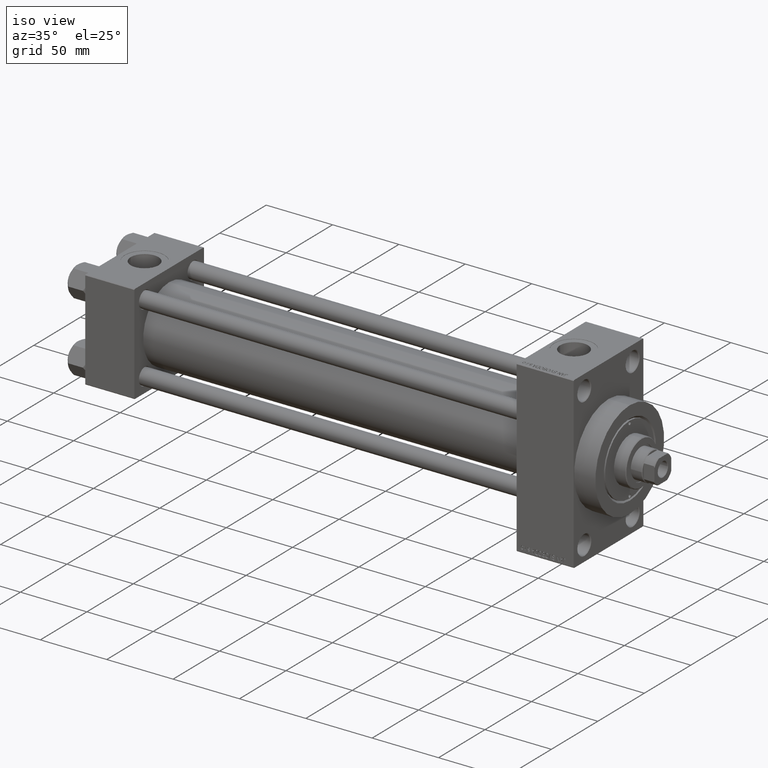
[diagram: clean part render]
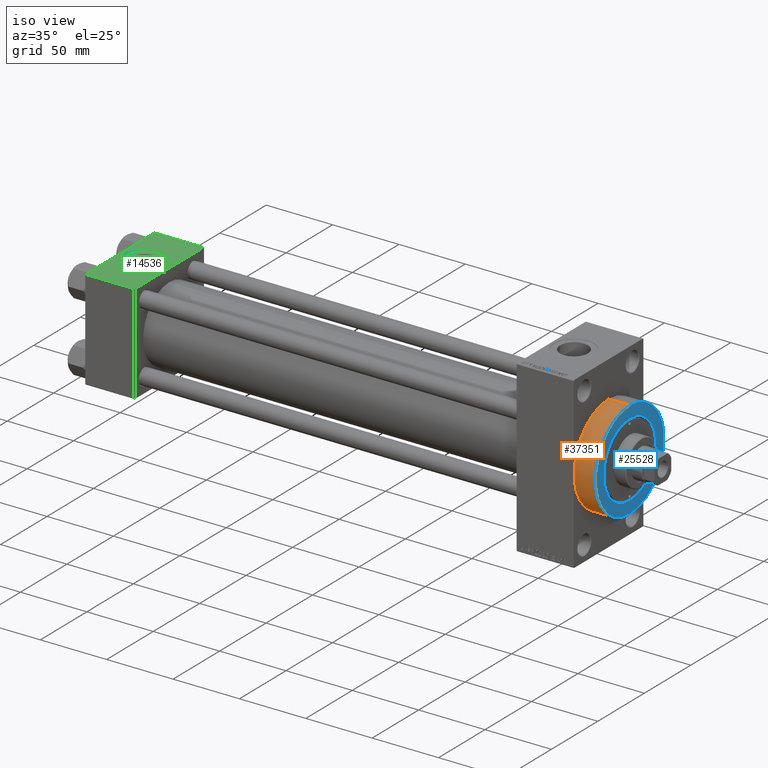
[diagram: same view with three faces highlighted in distinct colors, each labeled with its STEP entity id]
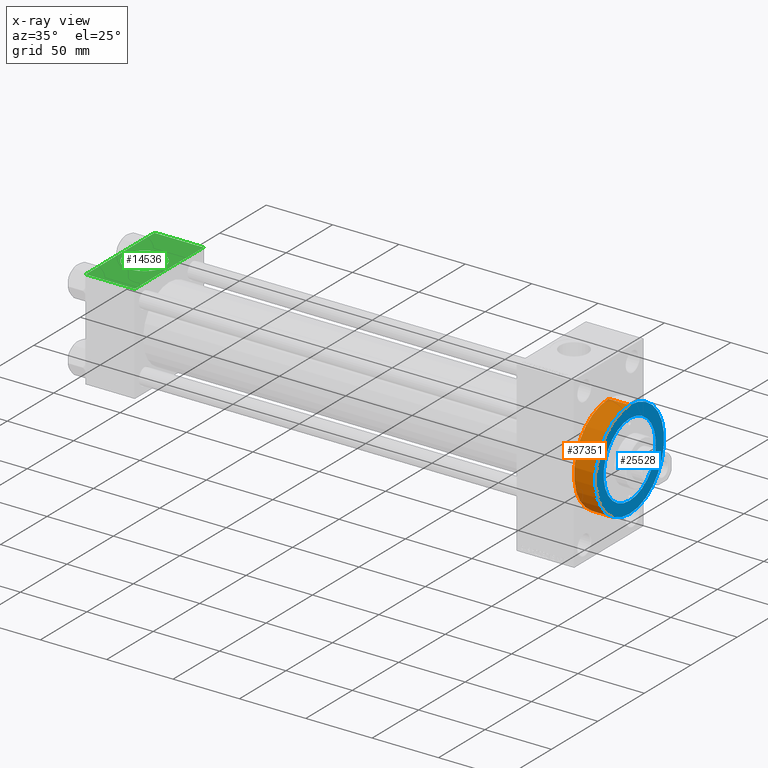
[diagram: x-ray of the same camera — body ghosted, the three highlighted faces saturated]
A machine part, iso view with three faces highlighted in distinct colors.
The next image is the same camera in x-ray (body ghosted, the three faces saturated) — at least one of them is partly hidden behind the body in this view.
Their STEP definitions:

[orange] entity #37351 — the highlighted cylindrical surface (partial cylindrical patch) has radius 37 mm, axis along (-1, -0, -0).
#944 = CIRCLE ( 'NONE', #16902, 37.00000000000000000 ) ;
#1971 = CARTESIAN_POINT ( 'NONE',  ( 367.9999999999999432, 4.531193156845206793E-15, -37.00000000000000000 ) ) ;
#5711 = ORIENTED_EDGE ( 'NONE', *, *, #42614, .F. ) ;
#8736 = DIRECTION ( 'NONE',  ( 1.000000000000000000, 0.000000000000000000, 0.000000000000000000 ) ) ;
#10818 = DIRECTION ( 'NONE',  ( -1.000000000000000000, -0.000000000000000000, -0.000000000000000000 ) ) ;
#12313 = EDGE_CURVE ( 'NONE', #16116, #41378, #48878, .T. ) ;
#13114 = ORIENTED_EDGE ( 'NONE', *, *, #43812, .T. ) ;
#13224 = CARTESIAN_POINT ( 'NONE',  ( 367.9999999999999432, 0.000000000000000000, 0.000000000000000000 ) ) ;
#13667 = VERTEX_POINT ( 'NONE', #36776 ) ;
#13693 = CYLINDRICAL_SURFACE ( 'NONE', #32863, 37.00000000000000000 ) ;
#14745 = ORIENTED_EDGE ( 'NONE', *, *, #43523, .T. ) ;
#16116 = VERTEX_POINT ( 'NONE', #34728 ) ;
#16902 = AXIS2_PLACEMENT_3D ( 'NONE', #28013, #40757, #29009 ) ;
#17477 = DIRECTION ( 'NONE',  ( 0.000000000000000000, 0.000000000000000000, -1.000000000000000000 ) ) ;
#17754 = CIRCLE ( 'NONE', #24159, 37.00000000000000000 ) ;
#21686 = CARTESIAN_POINT ( 'NONE',  ( 383.9999999999999432, 0.000000000000000000, 37.00000000000000000 ) ) ;
#23969 = CARTESIAN_POINT ( 'NONE',  ( 383.9999999999999432, 0.000000000000000000, 0.000000000000000000 ) ) ;
#24159 = AXIS2_PLACEMENT_3D ( 'NONE', #13224, #8736, #17477 ) ;
#24462 = DIRECTION ( 'NONE',  ( 0.000000000000000000, 0.000000000000000000, 1.000000000000000000 ) ) ;
#28013 = CARTESIAN_POINT ( 'NONE',  ( 383.9999999999999432, 0.000000000000000000, 0.000000000000000000 ) ) ;
#28023 = EDGE_LOOP ( 'NONE', ( #36216, #5711, #13114, #14745 ) ) ;
#29009 = DIRECTION ( 'NONE',  ( 0.000000000000000000, 0.000000000000000000, -1.000000000000000000 ) ) ;
#31742 = LINE ( 'NONE', #31981, #44941 ) ;
#31981 = CARTESIAN_POINT ( 'NONE',  ( 383.9999999999999432, 0.000000000000000000, 37.00000000000000000 ) ) ;
#32007 = DIRECTION ( 'NONE',  ( -1.000000000000000000, -0.000000000000000000, -0.000000000000000000 ) ) ;
#32422 = VERTEX_POINT ( 'NONE', #21686 ) ;
#32863 = AXIS2_PLACEMENT_3D ( 'NONE', #23969, #32007, #24462 ) ;
#34728 = CARTESIAN_POINT ( 'NONE',  ( 383.9999999999999432, 4.531193156845206793E-15, -37.00000000000000000 ) ) ;
#36216 = ORIENTED_EDGE ( 'NONE', *, *, #12313, .F. ) ;
#36244 = VECTOR ( 'NONE', #10818, 1000.000000000000000 ) ;
#36776 = CARTESIAN_POINT ( 'NONE',  ( 367.9999999999999432, 0.000000000000000000, 37.00000000000000000 ) ) ;
#37351 = ADVANCED_FACE ( 'NONE', ( #47272 ), #13693, .T. ) ;
#40757 = DIRECTION ( 'NONE',  ( 1.000000000000000000, 0.000000000000000000, 0.000000000000000000 ) ) ;
#41124 = CARTESIAN_POINT ( 'NONE',  ( 383.9999999999999432, 4.531193156845206793E-15, -37.00000000000000000 ) ) ;
#41378 = VERTEX_POINT ( 'NONE', #1971 ) ;
#42614 = EDGE_CURVE ( 'NONE', #32422, #16116, #944, .T. ) ;
#43523 = EDGE_CURVE ( 'NONE', #13667, #41378, #17754, .T. ) ;
#43812 = EDGE_CURVE ( 'NONE', #32422, #13667, #31742, .T. ) ;
#44941 = VECTOR ( 'NONE', #47740, 1000.000000000000000 ) ;
#47272 = FACE_OUTER_BOUND ( 'NONE', #28023, .T. ) ;
#47740 = DIRECTION ( 'NONE',  ( -1.000000000000000000, -0.000000000000000000, -0.000000000000000000 ) ) ;
#48878 = LINE ( 'NONE', #41124, #36244 ) ;

[blue] entity #25528 — the highlighted planar face has unit normal (1, 0, 0).
#300 = FACE_OUTER_BOUND ( 'NONE', #44791, .T. ) ;
#944 = CIRCLE ( 'NONE', #16902, 37.00000000000000000 ) ;
#1363 = DIRECTION ( 'NONE',  ( -1.000000000000000000, -0.000000000000000000, -0.000000000000000000 ) ) ;
#2549 = CARTESIAN_POINT ( 'NONE',  ( 383.9999999999999432, 3.429011037612599137E-15, 28.00000000000008171 ) ) ;
#3260 = AXIS2_PLACEMENT_3D ( 'NONE', #12108, #1363, #39663 ) ;
#4333 = EDGE_CURVE ( 'NONE', #35128, #19757, #48015, .T. ) ;
#5959 = DIRECTION ( 'NONE',  ( 1.000000000000000000, 0.000000000000000000, 0.000000000000000000 ) ) ;
#12108 = CARTESIAN_POINT ( 'NONE',  ( 383.9999999999999432, 0.000000000000000000, 0.000000000000000000 ) ) ;
#12594 = EDGE_LOOP ( 'NONE', ( #12916, #32836 ) ) ;
#12685 = AXIS2_PLACEMENT_3D ( 'NONE', #19033, #45852, #22293 ) ;
#12916 = ORIENTED_EDGE ( 'NONE', *, *, #4333, .T. ) ;
#13024 = DIRECTION ( 'NONE',  ( 0.000000000000000000, 0.000000000000000000, -1.000000000000000000 ) ) ;
#13706 = DIRECTION ( 'NONE',  ( 0.000000000000000000, 0.000000000000000000, -1.000000000000000000 ) ) ;
#15057 = ORIENTED_EDGE ( 'NONE', *, *, #25784, .T. ) ;
#16116 = VERTEX_POINT ( 'NONE', #34728 ) ;
#16780 = PLANE ( 'NONE',  #46928 ) ;
#16902 = AXIS2_PLACEMENT_3D ( 'NONE', #28013, #40757, #29009 ) ;
#17522 = DIRECTION ( 'NONE',  ( 1.000000000000000000, 0.000000000000000000, 0.000000000000000000 ) ) ;
#19033 = CARTESIAN_POINT ( 'NONE',  ( 383.9999999999999432, 0.000000000000000000, 0.000000000000000000 ) ) ;
#19757 = VERTEX_POINT ( 'NONE', #2549 ) ;
#21686 = CARTESIAN_POINT ( 'NONE',  ( 383.9999999999999432, 0.000000000000000000, 37.00000000000000000 ) ) ;
#22293 = DIRECTION ( 'NONE',  ( 0.000000000000000000, 0.000000000000000000, -1.000000000000000000 ) ) ;
#22843 = AXIS2_PLACEMENT_3D ( 'NONE', #40274, #5959, #13706 ) ;
#25043 = CARTESIAN_POINT ( 'NONE',  ( 383.9999999999999432, 0.000000000000000000, 0.000000000000000000 ) ) ;
#25358 = CIRCLE ( 'NONE', #22843, 37.00000000000000000 ) ;
#25528 = ADVANCED_FACE ( 'NONE', ( #39593, #300 ), #16780, .T. ) ;
#25784 = EDGE_CURVE ( 'NONE', #16116, #32422, #25358, .T. ) ;
#28013 = CARTESIAN_POINT ( 'NONE',  ( 383.9999999999999432, 0.000000000000000000, 0.000000000000000000 ) ) ;
#29009 = DIRECTION ( 'NONE',  ( 0.000000000000000000, 0.000000000000000000, -1.000000000000000000 ) ) ;
#30321 = CIRCLE ( 'NONE', #12685, 28.00000000000008171 ) ;
#32422 = VERTEX_POINT ( 'NONE', #21686 ) ;
#32836 = ORIENTED_EDGE ( 'NONE', *, *, #33376, .T. ) ;
#33376 = EDGE_CURVE ( 'NONE', #19757, #35128, #30321, .T. ) ;
#34728 = CARTESIAN_POINT ( 'NONE',  ( 383.9999999999999432, 4.531193156845206793E-15, -37.00000000000000000 ) ) ;
#35128 = VERTEX_POINT ( 'NONE', #43650 ) ;
#39593 = FACE_BOUND ( 'NONE', #12594, .T. ) ;
#39663 = DIRECTION ( 'NONE',  ( 0.000000000000000000, 0.000000000000000000, -1.000000000000000000 ) ) ;
#40274 = CARTESIAN_POINT ( 'NONE',  ( 383.9999999999999432, 0.000000000000000000, 0.000000000000000000 ) ) ;
#40298 = ORIENTED_EDGE ( 'NONE', *, *, #42614, .T. ) ;
#40757 = DIRECTION ( 'NONE',  ( 1.000000000000000000, 0.000000000000000000, 0.000000000000000000 ) ) ;
#42614 = EDGE_CURVE ( 'NONE', #32422, #16116, #944, .T. ) ;
#43650 = CARTESIAN_POINT ( 'NONE',  ( 383.9999999999999432, 0.000000000000000000, -28.00000000000008171 ) ) ;
#44791 = EDGE_LOOP ( 'NONE', ( #40298, #15057 ) ) ;
#45852 = DIRECTION ( 'NONE',  ( -1.000000000000000000, -0.000000000000000000, -0.000000000000000000 ) ) ;
#46928 = AXIS2_PLACEMENT_3D ( 'NONE', #25043, #17522, #13024 ) ;
#48015 = CIRCLE ( 'NONE', #3260, 28.00000000000008171 ) ;

[green] entity #14536 — the highlighted planar face has unit normal (0, 0, -1).
#376 = LINE ( 'NONE', #38434, #21679 ) ;
#981 = LINE ( 'NONE', #16228, #19561 ) ;
#1091 = DIRECTION ( 'NONE',  ( 0.000000000000000000, 9.251858538542971581E-17, -1.000000000000000000 ) ) ;
#1692 = CARTESIAN_POINT ( 'NONE',  ( 3.499999999999997780, -3.367200229209391300E-15, 37.50000000000000000 ) ) ;
#3102 = DIRECTION ( 'NONE',  ( 1.000000000000000000, 0.000000000000000000, 0.000000000000000000 ) ) ;
#7388 = EDGE_CURVE ( 'NONE', #8666, #44347, #11158, .T. ) ;
#8219 = LINE ( 'NONE', #11478, #41572 ) ;
#8416 = VERTEX_POINT ( 'NONE', #12003 ) ;
#8666 = VERTEX_POINT ( 'NONE', #31454 ) ;
#9533 = ORIENTED_EDGE ( 'NONE', *, *, #17311, .T. ) ;
#11117 = EDGE_CURVE ( 'NONE', #46238, #23894, #12960, .T. ) ;
#11158 = LINE ( 'NONE', #29701, #19323 ) ;
#11478 = CARTESIAN_POINT ( 'NONE',  ( 0.000000000000000000, 37.49999999999999289, 37.50000000000000000 ) ) ;
#11896 = CARTESIAN_POINT ( 'NONE',  ( 18.50000000000000000, -5.204170427930421283E-15, 37.50000000000000000 ) ) ;
#12003 = CARTESIAN_POINT ( 'NONE',  ( 0.000000000000000000, 36.99999999999999289, 37.50000000000000000 ) ) ;
#12183 = AXIS2_PLACEMENT_3D ( 'NONE', #49176, #45181, #3102 ) ;
#12960 = CIRCLE ( 'NONE', #12183, 15.00000000000000355 ) ;
#14536 = ADVANCED_FACE ( 'NONE', ( #27613, #46394 ), #42890, .F. ) ;
#15976 = DIRECTION ( 'NONE',  ( 1.000000000000000000, 0.000000000000000000, 0.000000000000000000 ) ) ;
#16228 = CARTESIAN_POINT ( 'NONE',  ( 37.00000000000000000, -37.00000000000000711, 37.49999999999999289 ) ) ;
#17311 = EDGE_CURVE ( 'NONE', #44032, #44347, #981, .T. ) ;
#19323 = VECTOR ( 'NONE', #25693, 1000.000000000000000 ) ;
#19371 = DIRECTION ( 'NONE',  ( -1.000000000000000000, 0.000000000000000000, 0.000000000000000000 ) ) ;
#19496 = CARTESIAN_POINT ( 'NONE',  ( 37.00000000000000000, -37.00000000000000711, 37.49999999999999289 ) ) ;
#19561 = VECTOR ( 'NONE', #15976, 1000.000000000000000 ) ;
#20713 = CIRCLE ( 'NONE', #31947, 15.00000000000000355 ) ;
#21073 = AXIS2_PLACEMENT_3D ( 'NONE', #23589, #1091, #43394 ) ;
#21098 = ORIENTED_EDGE ( 'NONE', *, *, #38254, .T. ) ;
#21662 = CARTESIAN_POINT ( 'NONE',  ( 0.000000000000000000, -37.00000000000000711, 37.49999999999999289 ) ) ;
#21679 = VECTOR ( 'NONE', #19371, 1000.000000000000000 ) ;
#22680 = ORIENTED_EDGE ( 'NONE', *, *, #42831, .T. ) ;
#23589 = CARTESIAN_POINT ( 'NONE',  ( 37.00000000000000000, 37.49999999999999289, 37.50000000000000000 ) ) ;
#23894 = VERTEX_POINT ( 'NONE', #1692 ) ;
#24326 = EDGE_LOOP ( 'NONE', ( #21098, #9533, #28189, #22680 ) ) ;
#24879 = CARTESIAN_POINT ( 'NONE',  ( 33.50000000000000000, -5.204170427930421283E-15, 37.50000000000000000 ) ) ;
#25693 = DIRECTION ( 'NONE',  ( 0.000000000000000000, -1.000000000000000000, -9.251858538542971581E-17 ) ) ;
#27613 = FACE_BOUND ( 'NONE', #28146, .T. ) ;
#28146 = EDGE_LOOP ( 'NONE', ( #42221, #48204 ) ) ;
#28189 = ORIENTED_EDGE ( 'NONE', *, *, #7388, .F. ) ;
#29701 = CARTESIAN_POINT ( 'NONE',  ( 37.00000000000000000, 37.49999999999999289, 37.50000000000000000 ) ) ;
#30458 = DIRECTION ( 'NONE',  ( 1.000000000000000000, 0.000000000000000000, 0.000000000000000000 ) ) ;
#31454 = CARTESIAN_POINT ( 'NONE',  ( 37.00000000000000000, 36.99999999999999289, 37.50000000000000000 ) ) ;
#31947 = AXIS2_PLACEMENT_3D ( 'NONE', #11896, #42461, #30458 ) ;
#34779 = EDGE_CURVE ( 'NONE', #23894, #46238, #20713, .T. ) ;
#38254 = EDGE_CURVE ( 'NONE', #8416, #44032, #8219, .T. ) ;
#38434 = CARTESIAN_POINT ( 'NONE',  ( 0.000000000000000000, 36.99999999999999289, 37.50000000000000000 ) ) ;
#41572 = VECTOR ( 'NONE', #42032, 1000.000000000000000 ) ;
#42032 = DIRECTION ( 'NONE',  ( 0.000000000000000000, -1.000000000000000000, -9.251858538542971581E-17 ) ) ;
#42221 = ORIENTED_EDGE ( 'NONE', *, *, #11117, .F. ) ;
#42461 = DIRECTION ( 'NONE',  ( 0.000000000000000000, 0.000000000000000000, 1.000000000000000000 ) ) ;
#42831 = EDGE_CURVE ( 'NONE', #8666, #8416, #376, .T. ) ;
#42890 = PLANE ( 'NONE',  #21073 ) ;
#43394 = DIRECTION ( 'NONE',  ( 0.000000000000000000, 1.000000000000000000, 9.251858538542971581E-17 ) ) ;
#44032 = VERTEX_POINT ( 'NONE', #21662 ) ;
#44347 = VERTEX_POINT ( 'NONE', #19496 ) ;
#45181 = DIRECTION ( 'NONE',  ( 0.000000000000000000, 0.000000000000000000, 1.000000000000000000 ) ) ;
#46238 = VERTEX_POINT ( 'NONE', #24879 ) ;
#46394 = FACE_OUTER_BOUND ( 'NONE', #24326, .T. ) ;
#48204 = ORIENTED_EDGE ( 'NONE', *, *, #34779, .F. ) ;
#49176 = CARTESIAN_POINT ( 'NONE',  ( 18.50000000000000000, -5.204170427930421283E-15, 37.50000000000000000 ) ) ;